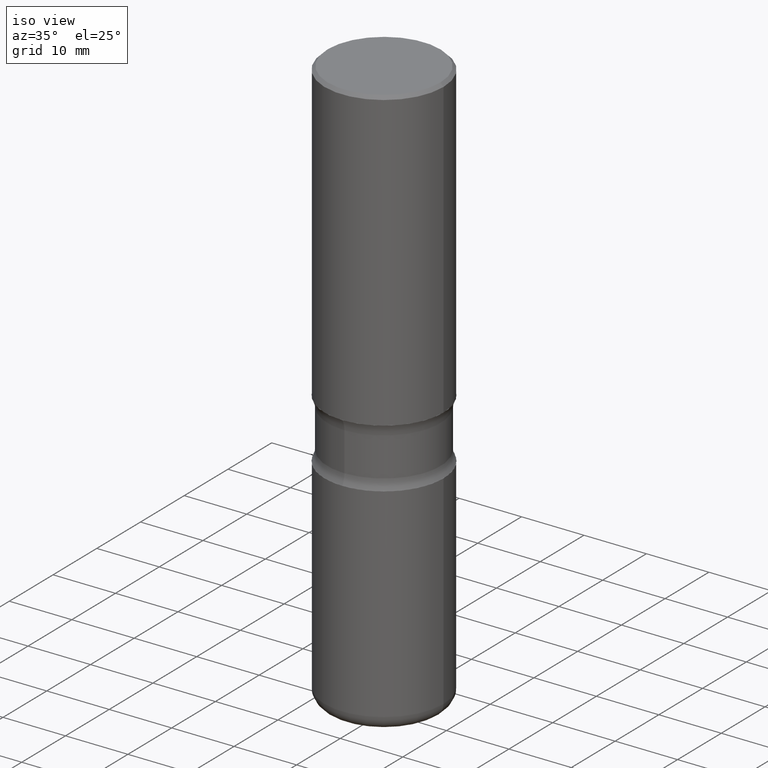
[diagram: clean part render]
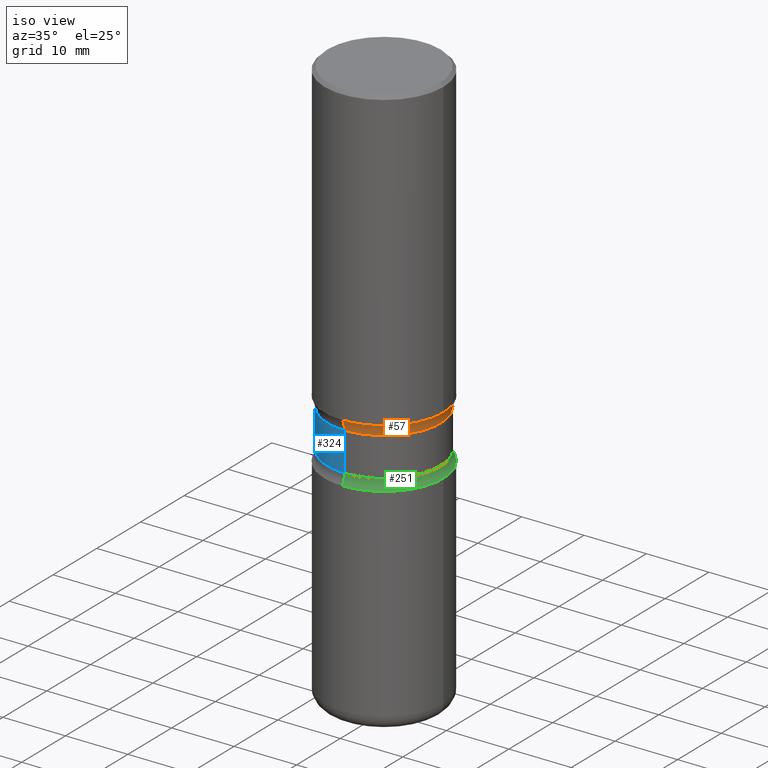
[diagram: same view with three faces highlighted in distinct colors, each labeled with its STEP entity id]
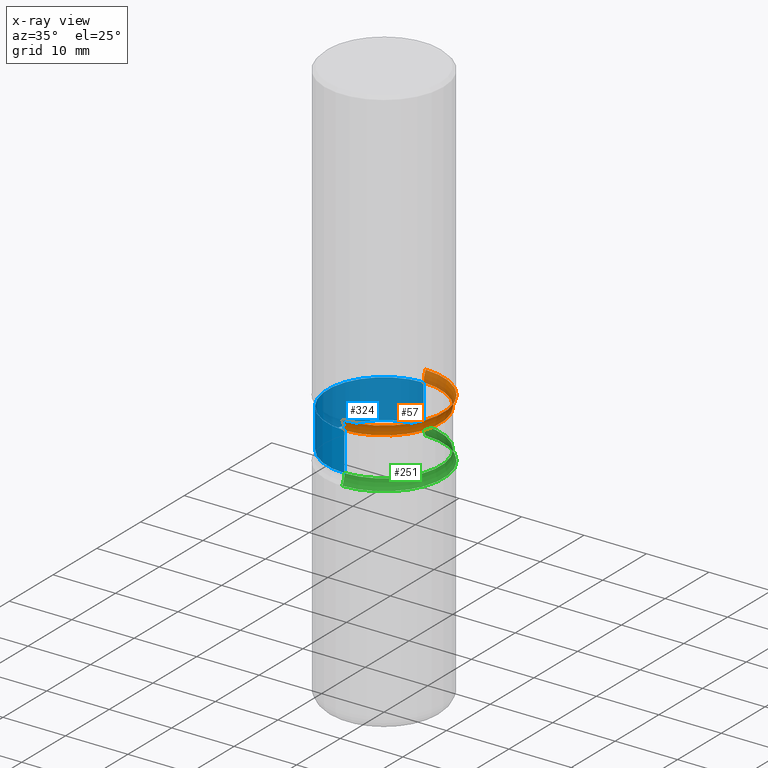
[diagram: x-ray of the same camera — body ghosted, the three highlighted faces saturated]
A machine part, iso view with three faces highlighted in distinct colors.
The next image is the same camera in x-ray (body ghosted, the three faces saturated) — at least one of them is partly hidden behind the body in this view.
Their STEP definitions:

[orange] entity #57 — the highlighted toroidal blend (fillet) surface has major radius 12.2301 mm and minor (blend) radius 3.175 mm.
#13 = CARTESIAN_POINT ( 'NONE',  ( 2.489426194595200956E-15, 0.3564999999999931557, -1.940442723048482199 ) ) ;
#21 = CARTESIAN_POINT ( 'NONE',  ( 2.618611004132398137E-15, 0.3749999999999938383, -1.875000000000001998 ) ) ;
#30 = DIRECTION ( 'NONE',  ( 6.982962677686265922E-15, 1.000000000000000000, -3.831483862081716154E-15 ) ) ;
#37 = DIRECTION ( 'NONE',  ( 2.412880205859895394E-29, -3.538150069336831953E-15, -1.000000000000000000 ) ) ;
#57 = ADVANCED_FACE ( 'NONE', ( #141 ), #179, .F. ) ;
#59 = VERTEX_POINT ( 'NONE', #13 ) ;
#87 = AXIS2_PLACEMENT_3D ( 'NONE', #305, #449, #99 ) ;
#99 = DIRECTION ( 'NONE',  ( -6.982962677686269077E-15, -1.000000000000000000, 0.000000000000000000 ) ) ;
#107 = AXIS2_PLACEMENT_3D ( 'NONE', #188, #37, #511 ) ;
#117 = DIRECTION ( 'NONE',  ( 6.982962677686266711E-15, 1.000000000000000000, -3.642463991552348591E-15 ) ) ;
#126 = CIRCLE ( 'NONE', #278, 0.3564999999999999281 ) ;
#139 = DIRECTION ( 'NONE',  ( 1.000000000000000000, -6.860497997771530774E-15, 4.840227352509949110E-29 ) ) ;
#141 = FACE_OUTER_BOUND ( 'NONE', #490, .T. ) ;
#165 = DIRECTION ( 'NONE',  ( 2.412880205859895394E-29, -3.538150069336831953E-15, -1.000000000000000000 ) ) ;
#179 = TOROIDAL_SURFACE ( 'NONE', #107, 0.4814999999999999281, 0.1249999999999999861 ) ;
#182 = EDGE_CURVE ( 'NONE', #448, #475, #389, .T. ) ;
#188 = CARTESIAN_POINT ( 'NONE',  ( 4.745292149404004444E-29, -6.775019556617748882E-15, -1.940442723048480866 ) ) ;
#190 = VERTEX_POINT ( 'NONE', #335 ) ;
#229 = EDGE_CURVE ( 'NONE', #59, #190, #126, .T. ) ;
#257 = ORIENTED_EDGE ( 'NONE', *, *, #504, .T. ) ;
#278 = AXIS2_PLACEMENT_3D ( 'NONE', #469, #420, #30 ) ;
#305 = CARTESIAN_POINT ( 'NONE',  ( 3.362296529305983901E-15, 0.4814999999999931557, -1.940442723048482421 ) ) ;
#335 = CARTESIAN_POINT ( 'NONE',  ( -2.509227142684891319E-15, -0.3565000000000067004, -1.940442723048479534 ) ) ;
#340 = AXIS2_PLACEMENT_3D ( 'NONE', #444, #139, #528 ) ;
#371 = ORIENTED_EDGE ( 'NONE', *, *, #182, .T. ) ;
#389 = CIRCLE ( 'NONE', #470, 0.3750000000000002776 ) ;
#420 = DIRECTION ( 'NONE',  ( 2.412880205859895394E-29, -3.538150069336831953E-15, -1.000000000000000000 ) ) ;
#444 = CARTESIAN_POINT ( 'NONE',  ( -3.303329785926943528E-15, -0.4815000000000066449, -1.940442723048479312 ) ) ;
#447 = EDGE_CURVE ( 'NONE', #190, #475, #555, .T. ) ;
#448 = VERTEX_POINT ( 'NONE', #21 ) ;
#449 = DIRECTION ( 'NONE',  ( -1.000000000000000000, 6.982962677686265922E-15, -4.883557194083112340E-29 ) ) ;
#454 = CIRCLE ( 'NONE', #87, 0.1249999999999999584 ) ;
#466 = ORIENTED_EDGE ( 'NONE', *, *, #229, .F. ) ;
#469 = CARTESIAN_POINT ( 'NONE',  ( 4.755380187780347497E-29, -6.760572911487338460E-15, -1.940442723048480866 ) ) ;
#470 = AXIS2_PLACEMENT_3D ( 'NONE', #554, #165, #117 ) ;
#475 = VERTEX_POINT ( 'NONE', #535 ) ;
#490 = EDGE_LOOP ( 'NONE', ( #516, #466, #257, #371 ) ) ;
#504 = EDGE_CURVE ( 'NONE', #59, #448, #454, .T. ) ;
#511 = DIRECTION ( 'NONE',  ( 6.982962677686265922E-15, 1.000000000000000000, -3.538150069336831953E-15 ) ) ;
#516 = ORIENTED_EDGE ( 'NONE', *, *, #447, .F. ) ;
#528 = DIRECTION ( 'NONE',  ( 6.860497997771532351E-15, 1.000000000000000000, 0.000000000000000000 ) ) ;
#535 = CARTESIAN_POINT ( 'NONE',  ( -2.572686749164280160E-15, -0.3750000000000068834, -1.874999999999999334 ) ) ;
#554 = CARTESIAN_POINT ( 'NONE',  ( 4.597474736719097866E-29, -6.529026736395767994E-15, -1.875000000000000666 ) ) ;
#555 = CIRCLE ( 'NONE', #340, 0.1249999999999999584 ) ;

[blue] entity #324 — the highlighted cylindrical surface (partial cylindrical patch) has radius 9.0551 mm, axis along (0, -0, -1).
#9 = LINE ( 'NONE', #526, #460 ) ;
#13 = CARTESIAN_POINT ( 'NONE',  ( 2.489426194595200956E-15, 0.3564999999999931557, -1.940442723048482199 ) ) ;
#20 = EDGE_CURVE ( 'NONE', #190, #343, #378, .T. ) ;
#24 = DIRECTION ( 'NONE',  ( 2.412880205859895394E-29, -3.538150069336831953E-15, -1.000000000000000000 ) ) ;
#56 = DIRECTION ( 'NONE',  ( 2.412880205859895114E-29, -3.538150069336831953E-15, -1.000000000000000000 ) ) ;
#58 = CARTESIAN_POINT ( 'NONE',  ( -2.509227142684884613E-15, -0.3565000000000076441, -2.184557276951519356 ) ) ;
#59 = VERTEX_POINT ( 'NONE', #13 ) ;
#63 = ORIENTED_EDGE ( 'NONE', *, *, #185, .T. ) ;
#72 = CARTESIAN_POINT ( 'NONE',  ( 5.344399362855309954E-29, -7.624286837305509561E-15, -2.184557276951520688 ) ) ;
#90 = CARTESIAN_POINT ( 'NONE',  ( -2.445767536205462640E-15, -0.3565000000000126956, -3.624999999999999556 ) ) ;
#97 = DIRECTION ( 'NONE',  ( 2.412880205859895394E-29, -3.538150069336831953E-15, -1.000000000000000000 ) ) ;
#114 = CARTESIAN_POINT ( 'NONE',  ( 4.755380187780347497E-29, -6.760572911487338460E-15, -1.940442723048480866 ) ) ;
#145 = ORIENTED_EDGE ( 'NONE', *, *, #20, .F. ) ;
#156 = CIRCLE ( 'NONE', #220, 0.3564999999999999836 ) ;
#185 = EDGE_CURVE ( 'NONE', #190, #59, #541, .T. ) ;
#190 = VERTEX_POINT ( 'NONE', #335 ) ;
#216 = FACE_OUTER_BOUND ( 'NONE', #346, .T. ) ;
#220 = AXIS2_PLACEMENT_3D ( 'NONE', #72, #24, #352 ) ;
#245 = DIRECTION ( 'NONE',  ( 2.412880205859895394E-29, -3.538150069336831953E-15, -1.000000000000000000 ) ) ;
#247 = ORIENTED_EDGE ( 'NONE', *, *, #368, .T. ) ;
#260 = DIRECTION ( 'NONE',  ( 2.412880205859895114E-29, -3.538150069336831953E-15, -1.000000000000000000 ) ) ;
#289 = DIRECTION ( 'NONE',  ( 6.982962677686265922E-15, 1.000000000000000000, -3.831483862081716154E-15 ) ) ;
#294 = AXIS2_PLACEMENT_3D ( 'NONE', #114, #245, #289 ) ;
#297 = CARTESIAN_POINT ( 'NONE',  ( 8.820015096973915297E-29, -1.272078935773522598E-14, -3.625000000000000888 ) ) ;
#324 = ADVANCED_FACE ( 'NONE', ( #216 ), #486, .T. ) ;
#326 = ORIENTED_EDGE ( 'NONE', *, *, #514, .F. ) ;
#335 = CARTESIAN_POINT ( 'NONE',  ( -2.509227142684891319E-15, -0.3565000000000067004, -1.940442723048479534 ) ) ;
#343 = VERTEX_POINT ( 'NONE', #58 ) ;
#346 = EDGE_LOOP ( 'NONE', ( #145, #63, #247, #326 ) ) ;
#348 = AXIS2_PLACEMENT_3D ( 'NONE', #297, #97, #439 ) ;
#352 = DIRECTION ( 'NONE',  ( 6.982962677686266711E-15, 1.000000000000000000, -3.831483862081716154E-15 ) ) ;
#368 = EDGE_CURVE ( 'NONE', #59, #426, #9, .T. ) ;
#378 = LINE ( 'NONE', #90, #524 ) ;
#426 = VERTEX_POINT ( 'NONE', #435 ) ;
#435 = CARTESIAN_POINT ( 'NONE',  ( 2.489426194595207267E-15, 0.3564999999999923785, -2.184557276951522020 ) ) ;
#439 = DIRECTION ( 'NONE',  ( 6.982962677686266711E-15, 1.000000000000000000, -3.065187089665372450E-15 ) ) ;
#460 = VECTOR ( 'NONE', #260, 39.37007874015748143 ) ;
#486 = CYLINDRICAL_SURFACE ( 'NONE', #348, 0.3564999999999999836 ) ;
#514 = EDGE_CURVE ( 'NONE', #343, #426, #156, .T. ) ;
#524 = VECTOR ( 'NONE', #56, 39.37007874015748143 ) ;
#526 = CARTESIAN_POINT ( 'NONE',  ( 2.489426194595242372E-15, 0.3564999999999873270, -3.625000000000001776 ) ) ;
#541 = CIRCLE ( 'NONE', #294, 0.3564999999999999281 ) ;

[green] entity #251 — the highlighted toroidal blend (fillet) surface has major radius 12.2301 mm and minor (blend) radius 3.175 mm.
#3 = AXIS2_PLACEMENT_3D ( 'NONE', #113, #199, #242 ) ;
#11 = CIRCLE ( 'NONE', #402, 0.3750000000000003886 ) ;
#15 = EDGE_LOOP ( 'NONE', ( #398, #235, #65, #166 ) ) ;
#29 = EDGE_CURVE ( 'NONE', #306, #426, #167, .T. ) ;
#34 = CARTESIAN_POINT ( 'NONE',  ( -3.303329785926938795E-15, -0.4815000000000076996, -2.184557276951518912 ) ) ;
#50 = DIRECTION ( 'NONE',  ( 2.412880205859895394E-29, -3.538150069336831953E-15, -1.000000000000000000 ) ) ;
#58 = CARTESIAN_POINT ( 'NONE',  ( -2.509227142684884613E-15, -0.3565000000000076441, -2.184557276951519356 ) ) ;
#65 = ORIENTED_EDGE ( 'NONE', *, *, #29, .T. ) ;
#79 = DIRECTION ( 'NONE',  ( 1.000000000000000000, -6.860497997771530774E-15, 4.840227352509949110E-29 ) ) ;
#95 = DIRECTION ( 'NONE',  ( -1.000000000000000000, 6.982962677686265922E-15, -4.883557194083112340E-29 ) ) ;
#96 = CIRCLE ( 'NONE', #425, 0.3564999999999999836 ) ;
#113 = CARTESIAN_POINT ( 'NONE',  ( 5.342266676109687941E-29, -7.627340966110231428E-15, -2.184557276951520688 ) ) ;
#134 = CARTESIAN_POINT ( 'NONE',  ( 5.344399362855309954E-29, -7.624286837305509561E-15, -2.184557276951520688 ) ) ;
#151 = EDGE_CURVE ( 'NONE', #238, #343, #230, .T. ) ;
#159 = FACE_OUTER_BOUND ( 'NONE', #15, .T. ) ;
#166 = ORIENTED_EDGE ( 'NONE', *, *, #341, .T. ) ;
#167 = CIRCLE ( 'NONE', #493, 0.1250000000000000278 ) ;
#192 = CARTESIAN_POINT ( 'NONE',  ( -2.572686749164271482E-15, -0.3750000000000082712, -2.249999999999999556 ) ) ;
#199 = DIRECTION ( 'NONE',  ( 2.412880205859895394E-29, -3.538150069336831953E-15, -1.000000000000000000 ) ) ;
#207 = DIRECTION ( 'NONE',  ( 6.982962677686266711E-15, 1.000000000000000000, -3.831483862081716154E-15 ) ) ;
#230 = CIRCLE ( 'NONE', #499, 0.1250000000000000278 ) ;
#235 = ORIENTED_EDGE ( 'NONE', *, *, #453, .F. ) ;
#238 = VERTEX_POINT ( 'NONE', #192 ) ;
#242 = DIRECTION ( 'NONE',  ( 6.982962677686265922E-15, 1.000000000000000000, -3.538150069336831953E-15 ) ) ;
#251 = ADVANCED_FACE ( 'NONE', ( #159 ), #322, .F. ) ;
#302 = DIRECTION ( 'NONE',  ( 2.412880205859895394E-29, -3.538150069336831953E-15, -1.000000000000000000 ) ) ;
#304 = CARTESIAN_POINT ( 'NONE',  ( 3.362296529305990606E-15, 0.4814999999999923785, -2.184557276951522464 ) ) ;
#306 = VERTEX_POINT ( 'NONE', #442 ) ;
#322 = TOROIDAL_SURFACE ( 'NONE', #3, 0.4815000000000000391, 0.1250000000000000278 ) ;
#341 = EDGE_CURVE ( 'NONE', #426, #343, #96, .T. ) ;
#343 = VERTEX_POINT ( 'NONE', #58 ) ;
#356 = DIRECTION ( 'NONE',  ( 6.982962677686265922E-15, 1.000000000000000000, -3.642463991552347014E-15 ) ) ;
#370 = DIRECTION ( 'NONE',  ( 6.860497997771532351E-15, 1.000000000000000000, 0.000000000000000000 ) ) ;
#398 = ORIENTED_EDGE ( 'NONE', *, *, #151, .F. ) ;
#402 = AXIS2_PLACEMENT_3D ( 'NONE', #538, #302, #356 ) ;
#425 = AXIS2_PLACEMENT_3D ( 'NONE', #134, #50, #207 ) ;
#426 = VERTEX_POINT ( 'NONE', #435 ) ;
#435 = CARTESIAN_POINT ( 'NONE',  ( 2.489426194595207267E-15, 0.3564999999999923785, -2.184557276951522020 ) ) ;
#442 = CARTESIAN_POINT ( 'NONE',  ( 2.618611004132407209E-15, 0.3749999999999925060, -2.250000000000002220 ) ) ;
#453 = EDGE_CURVE ( 'NONE', #306, #238, #11, .T. ) ;
#487 = DIRECTION ( 'NONE',  ( -6.982962677686265133E-15, -1.000000000000000000, 0.000000000000000000 ) ) ;
#493 = AXIS2_PLACEMENT_3D ( 'NONE', #304, #95, #487 ) ;
#499 = AXIS2_PLACEMENT_3D ( 'NONE', #34, #79, #370 ) ;
#538 = CARTESIAN_POINT ( 'NONE',  ( 5.502304813916559585E-29, -7.855833012397080026E-15, -2.250000000000000888 ) ) ;